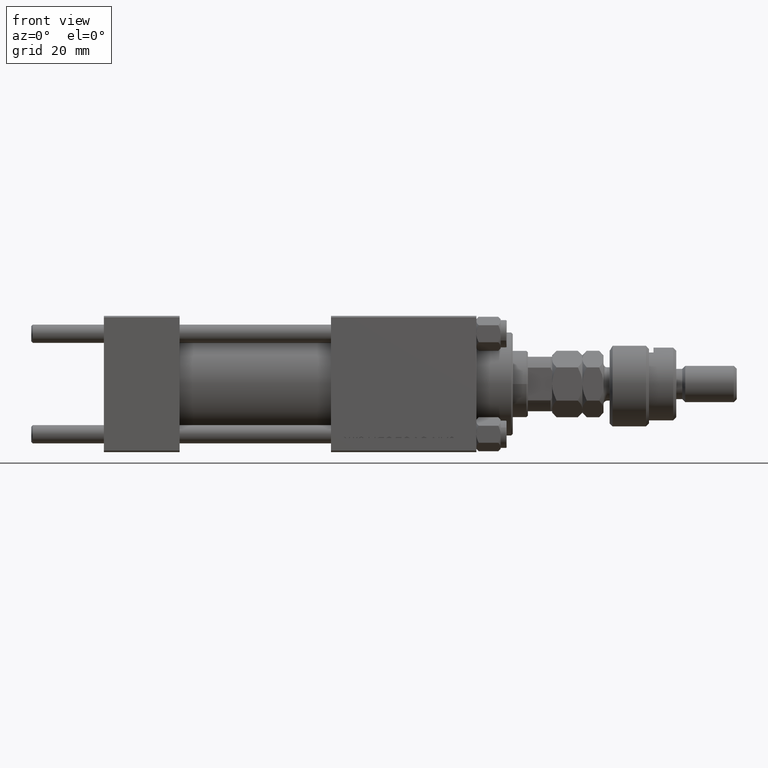
[diagram: clean part render]
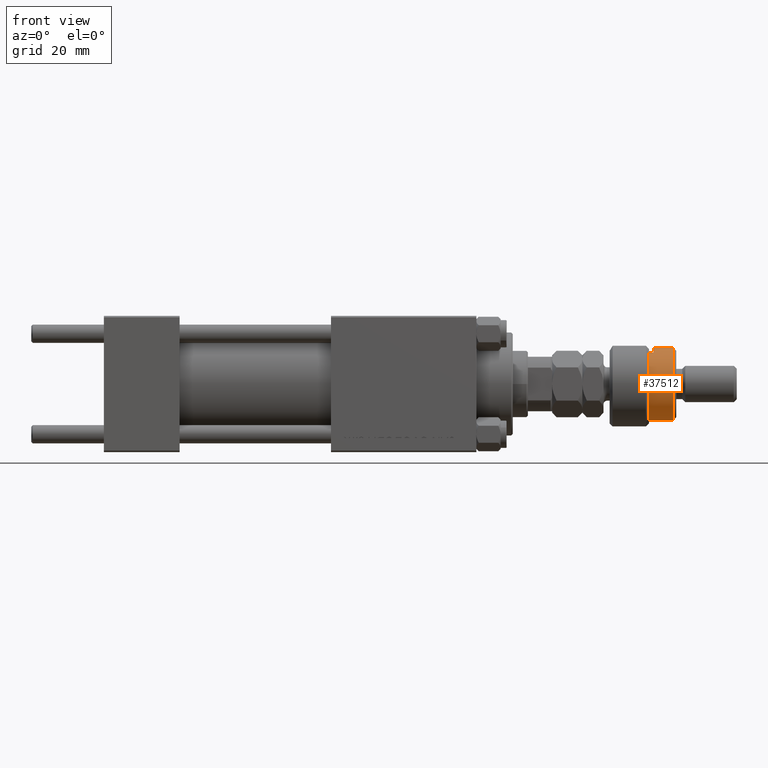
[diagram: same view with one face highlighted and labeled with its STEP entity id]
A machine part, front view. The second image highlights one B-rep face of the part: STEP entity #37512.
In plain terms, the highlighted cylindrical surface (edge-blend (fillet) strip) has radius 12 mm, axis along (-1, -0, 0).
Its self-contained STEP definition (entity closure, byte-faithful):
#59 = EDGE_CURVE ( 'NONE', #17233, #44339, #6059, .T. ) ;
#570 = VERTEX_POINT ( 'NONE', #41382 ) ;
#867 = CARTESIAN_POINT ( 'NONE',  ( 12.00000000000000178, 1.469576158976824144E-15, 22.00000000000000000 ) ) ;
#1314 = VECTOR ( 'NONE', #25616, 1000.000000000000000 ) ;
#1731 = DIRECTION ( 'NONE',  ( 0.000000000000000000, 0.000000000000000000, -1.000000000000000000 ) ) ;
#3251 = CARTESIAN_POINT ( 'NONE',  ( 0.000000000000000000, 0.000000000000000000, 14.50000000000000000 ) ) ;
#3720 = VECTOR ( 'NONE', #19519, 1000.000000000000000 ) ;
#4798 = DIRECTION ( 'NONE',  ( -0.000000000000000000, -0.000000000000000000, -1.000000000000000000 ) ) ;
#5042 = CARTESIAN_POINT ( 'NONE',  ( 12.00000000000000178, 1.469576158976824144E-15, 20.99999999999998224 ) ) ;
#6059 = CIRCLE ( 'NONE', #22222, 12.00000000000000178 ) ;
#7437 = DIRECTION ( 'NONE',  ( 1.000000000000000000, 0.000000000000000000, 0.000000000000000000 ) ) ;
#12570 = CIRCLE ( 'NONE', #32977, 12.00000000000000178 ) ;
#13718 = DIRECTION ( 'NONE',  ( 1.000000000000000000, 0.000000000000000000, 0.000000000000000000 ) ) ;
#13989 = CARTESIAN_POINT ( 'NONE',  ( 0.000000000000000000, 0.000000000000000000, 20.99999999999998224 ) ) ;
#16037 = CYLINDRICAL_SURFACE ( 'NONE', #19354, 12.00000000000000178 ) ;
#16270 = ORIENTED_EDGE ( 'NONE', *, *, #59, .T. ) ;
#17035 = CARTESIAN_POINT ( 'NONE',  ( -12.00000000000000178, 0.000000000000000000, 20.99999999999998224 ) ) ;
#17233 = VERTEX_POINT ( 'NONE', #24628 ) ;
#19354 = AXIS2_PLACEMENT_3D ( 'NONE', #49083, #20292, #23475 ) ;
#19519 = DIRECTION ( 'NONE',  ( -0.000000000000000000, -0.000000000000000000, -1.000000000000000000 ) ) ;
#19628 = EDGE_CURVE ( 'NONE', #25040, #570, #29068, .T. ) ;
#20292 = DIRECTION ( 'NONE',  ( -0.000000000000000000, -0.000000000000000000, -1.000000000000000000 ) ) ;
#20781 = CARTESIAN_POINT ( 'NONE',  ( -10.39230484541326760, -6.000000000000000000, 22.00000000000000000 ) ) ;
#22222 = AXIS2_PLACEMENT_3D ( 'NONE', #27675, #43937, #7437 ) ;
#23034 = ORIENTED_EDGE ( 'NONE', *, *, #37414, .T. ) ;
#23130 = EDGE_LOOP ( 'NONE', ( #50872, #23034, #30846, #27734, #42186, #16270 ) ) ;
#23475 = DIRECTION ( 'NONE',  ( -1.000000000000000000, 0.000000000000000000, 0.000000000000000000 ) ) ;
#24628 = CARTESIAN_POINT ( 'NONE',  ( -10.39230484541326760, -6.000000000000000000, 13.00000000000000000 ) ) ;
#25040 = VERTEX_POINT ( 'NONE', #30376 ) ;
#25217 = VERTEX_POINT ( 'NONE', #5042 ) ;
#25616 = DIRECTION ( 'NONE',  ( -0.000000000000000000, -0.000000000000000000, -1.000000000000000000 ) ) ;
#26983 = EDGE_CURVE ( 'NONE', #25040, #17233, #33540, .T. ) ;
#27255 = LINE ( 'NONE', #43508, #3720 ) ;
#27675 = CARTESIAN_POINT ( 'NONE',  ( 0.000000000000000000, 0.000000000000000000, 13.00000000000000000 ) ) ;
#27734 = ORIENTED_EDGE ( 'NONE', *, *, #19628, .F. ) ;
#29068 = CIRCLE ( 'NONE', #42805, 12.00000000000000178 ) ;
#30376 = CARTESIAN_POINT ( 'NONE',  ( -10.39230484541326582, -5.999999999999998224, 14.50000000000000000 ) ) ;
#30436 = DIRECTION ( 'NONE',  ( 0.000000000000000000, 0.000000000000000000, -1.000000000000000000 ) ) ;
#30846 = ORIENTED_EDGE ( 'NONE', *, *, #43311, .T. ) ;
#32977 = AXIS2_PLACEMENT_3D ( 'NONE', #13989, #1731, #13718 ) ;
#33540 = LINE ( 'NONE', #20781, #37854 ) ;
#37350 = LINE ( 'NONE', #867, #1314 ) ;
#37414 = EDGE_CURVE ( 'NONE', #25217, #42482, #12570, .T. ) ;
#37512 = ADVANCED_FACE ( 'NONE', ( #48287 ), #16037, .T. ) ;
#37653 = CARTESIAN_POINT ( 'NONE',  ( 12.00000000000000178, 1.469576158976824144E-15, 13.00000000000000000 ) ) ;
#37854 = VECTOR ( 'NONE', #4798, 1000.000000000000000 ) ;
#38693 = DIRECTION ( 'NONE',  ( -1.000000000000000000, 0.000000000000000000, 0.000000000000000000 ) ) ;
#41382 = CARTESIAN_POINT ( 'NONE',  ( -12.00000000000000178, 0.000000000000000000, 14.50000000000000000 ) ) ;
#42186 = ORIENTED_EDGE ( 'NONE', *, *, #26983, .T. ) ;
#42482 = VERTEX_POINT ( 'NONE', #17035 ) ;
#42805 = AXIS2_PLACEMENT_3D ( 'NONE', #3251, #30436, #38693 ) ;
#43311 = EDGE_CURVE ( 'NONE', #42482, #570, #27255, .T. ) ;
#43508 = CARTESIAN_POINT ( 'NONE',  ( -12.00000000000000178, 0.000000000000000000, 22.00000000000000000 ) ) ;
#43937 = DIRECTION ( 'NONE',  ( 0.000000000000000000, 0.000000000000000000, 1.000000000000000000 ) ) ;
#44339 = VERTEX_POINT ( 'NONE', #37653 ) ;
#48287 = FACE_OUTER_BOUND ( 'NONE', #23130, .T. ) ;
#49083 = CARTESIAN_POINT ( 'NONE',  ( 0.000000000000000000, 0.000000000000000000, 22.00000000000000000 ) ) ;
#50553 = EDGE_CURVE ( 'NONE', #25217, #44339, #37350, .T. ) ;
#50872 = ORIENTED_EDGE ( 'NONE', *, *, #50553, .F. ) ;